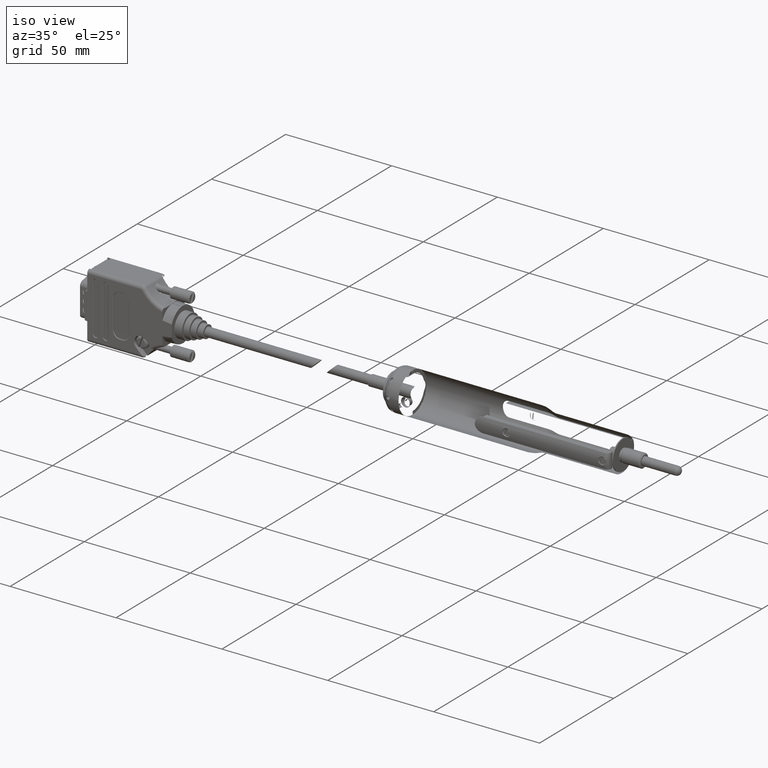
[diagram: clean part render]
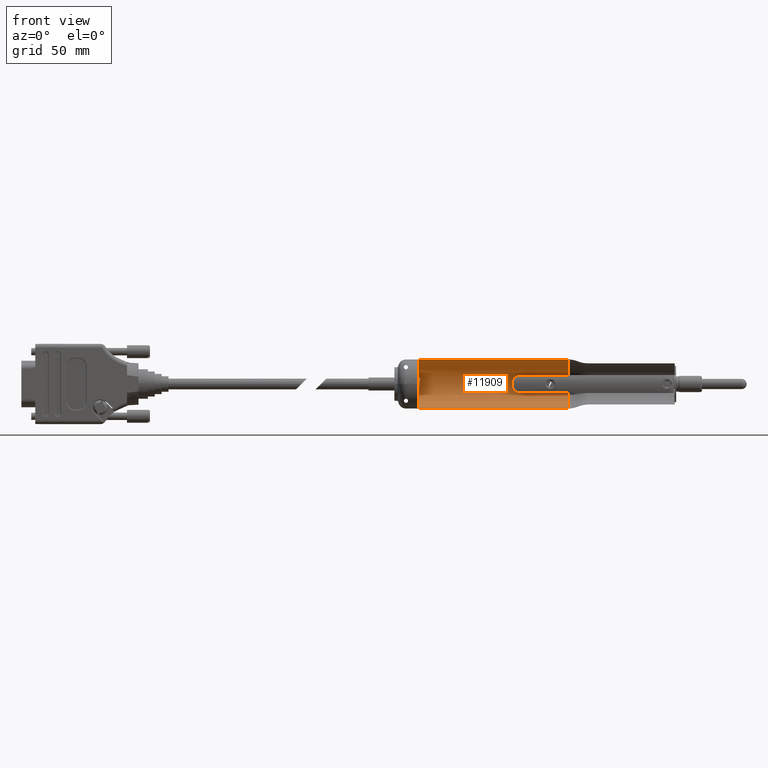
[diagram: tour spotlight — one face highlighted and labeled with its STEP entity id]
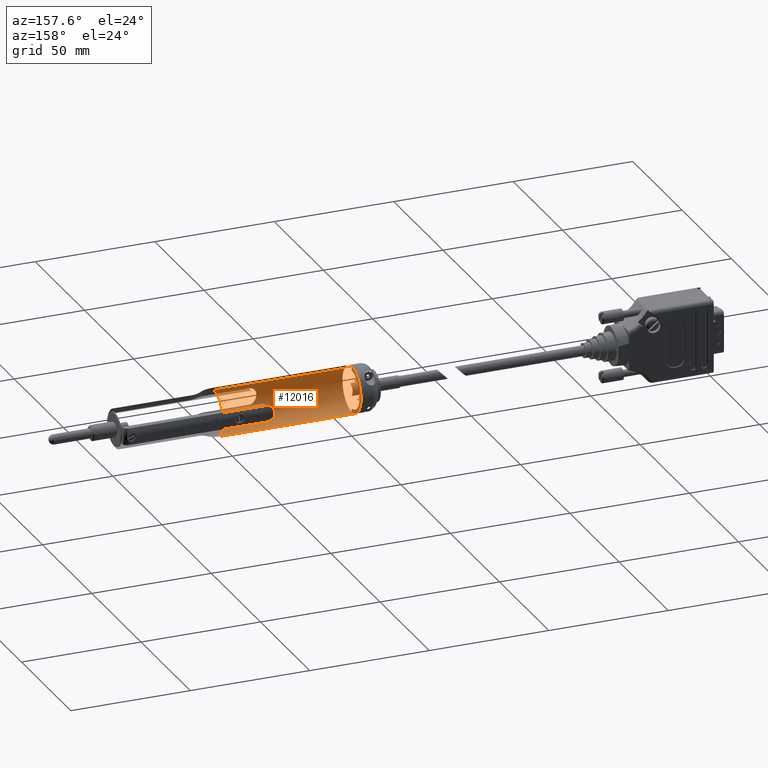
[diagram: tour spotlight — one face highlighted and labeled with its STEP entity id]
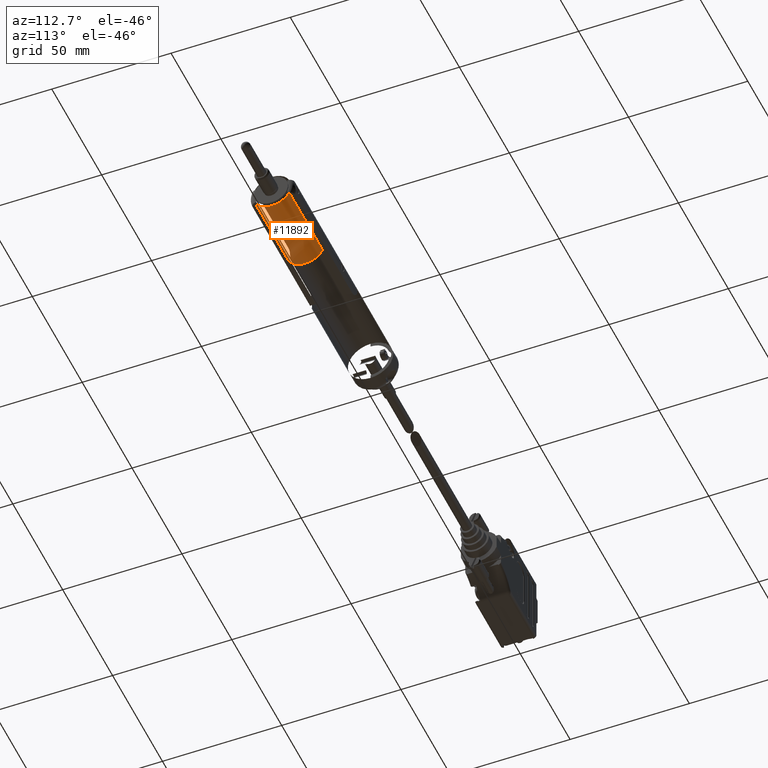
[diagram: tour spotlight — one face highlighted and labeled with its STEP entity id]
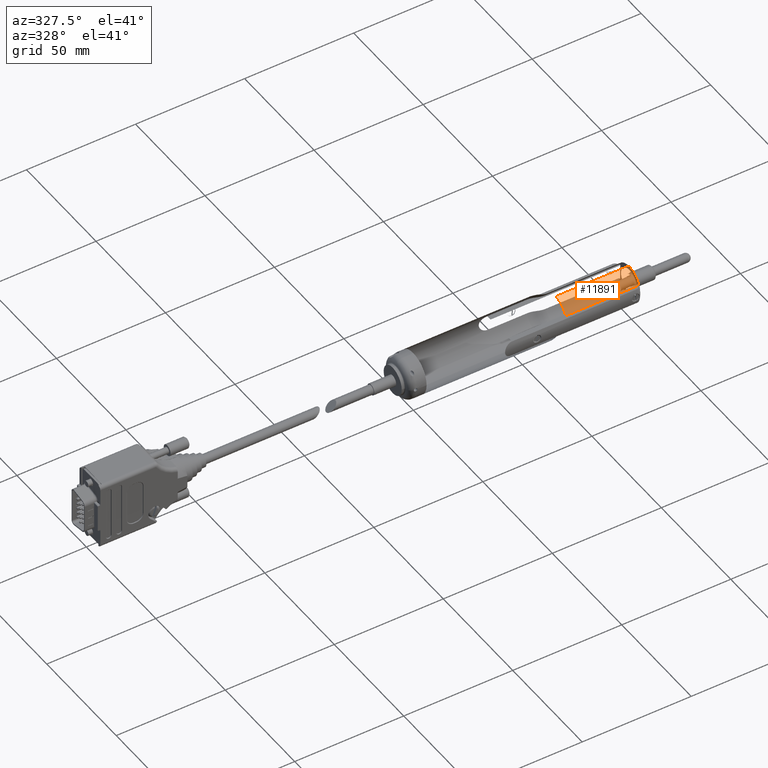
[diagram: tour spotlight — one face highlighted and labeled with its STEP entity id]
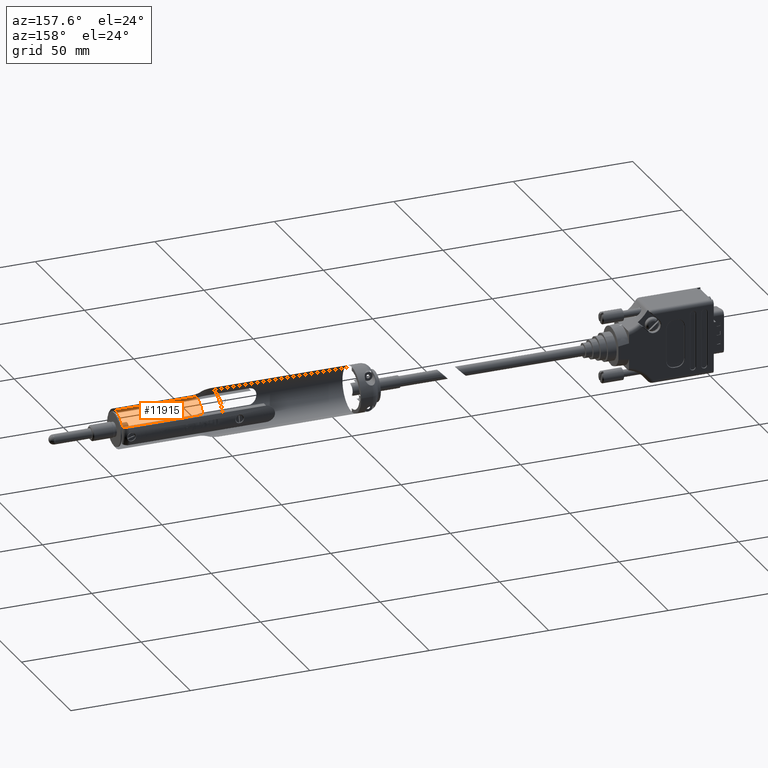
[diagram: tour spotlight — one face highlighted and labeled with its STEP entity id]
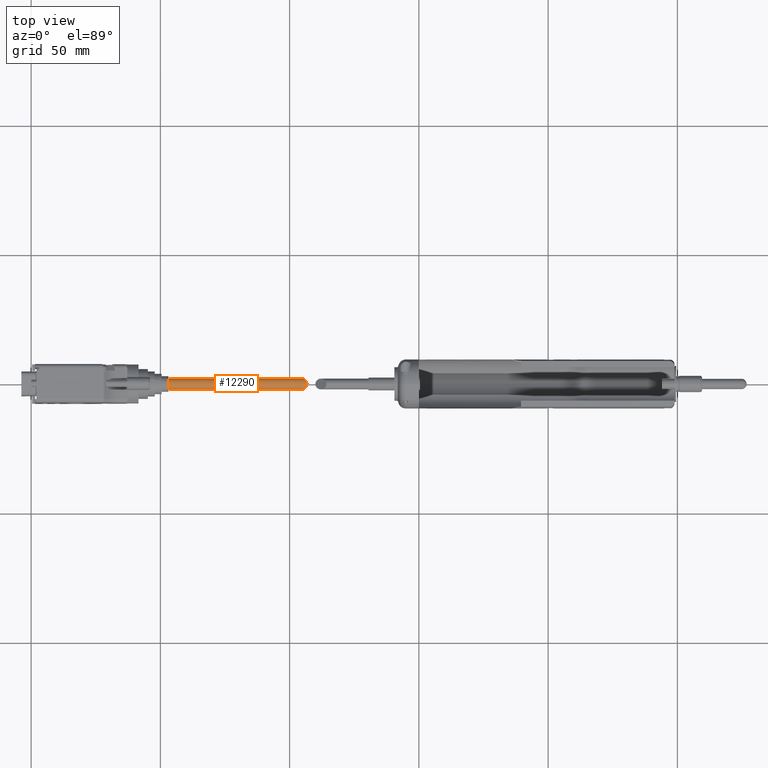
[diagram: tour spotlight — one face highlighted and labeled with its STEP entity id]
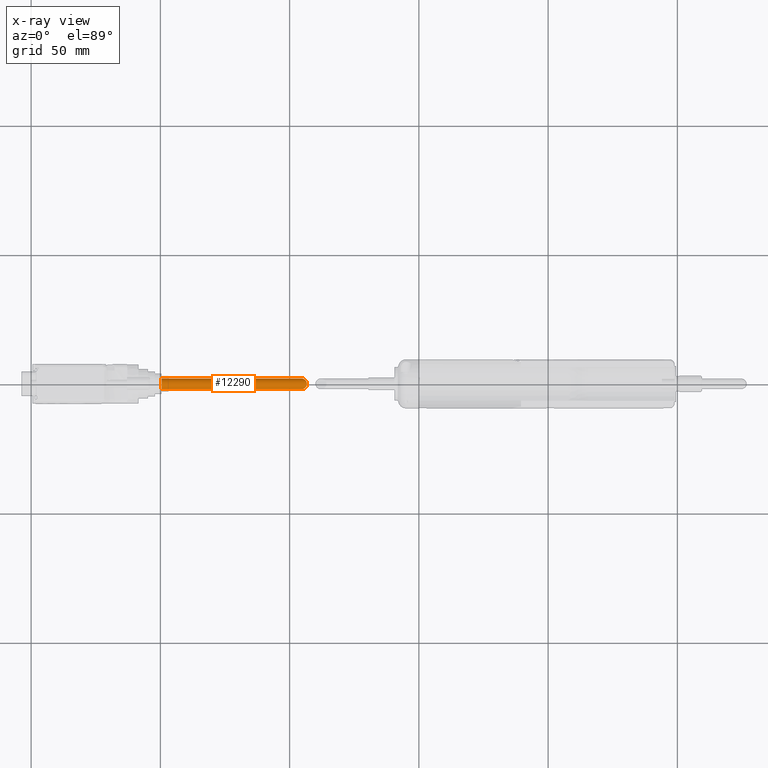
[diagram: x-ray of the same camera — body ghosted, this tour face saturated]
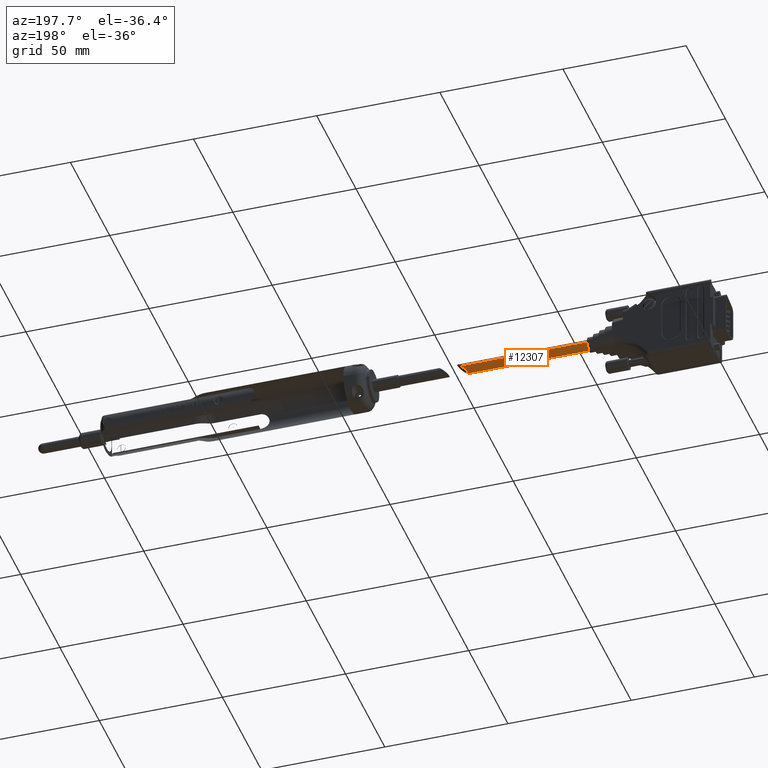
[diagram: tour spotlight — one face highlighted and labeled with its STEP entity id]
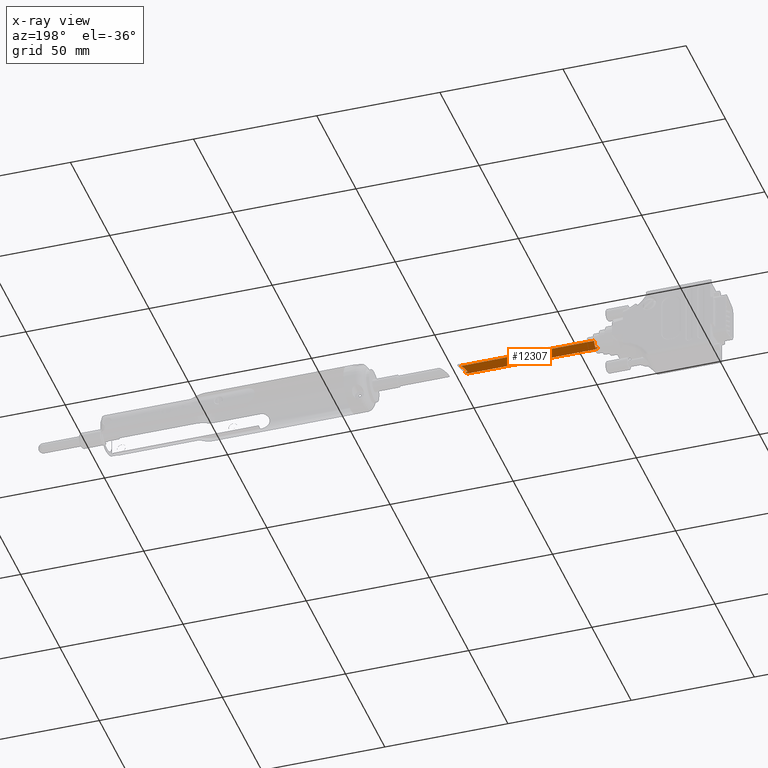
[diagram: x-ray of the same camera — body ghosted, this tour face saturated]
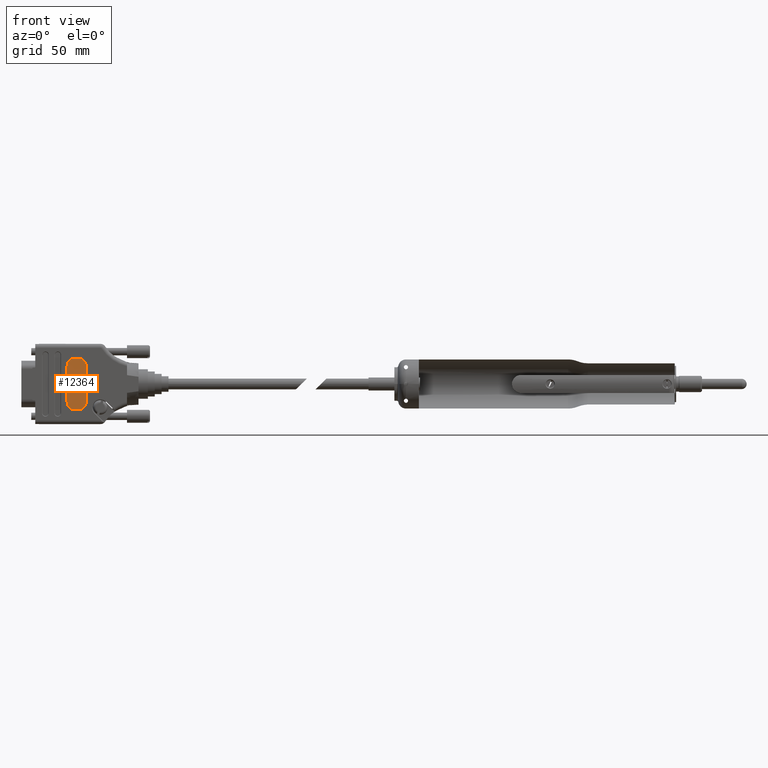
[diagram: tour spotlight — one face highlighted and labeled with its STEP entity id]
A machine part: a face-by-face anatomy tour. The part has 509 B-rep faces; the first image is the clean iso view, then the 8 largest visible faces are spotlighted one at a time (largest first), each with its STEP entity span.

Face 1 — front view, entity #11909. In plain terms, the highlighted cylindrical surface (edge-blend (fillet) strip) has radius 9.5 mm, axis along (-1, -0, -0).
Definition (entity closure, byte-faithful):
#606 = DIRECTION ( 'NONE',  ( -1.000000000000000000, -0.0000000000000000000, -0.0000000000000000000 ) ) ;
#607 = CARTESIAN_POINT ( 'NONE',  ( 39.50000000000000700, -8.831760866327846000, -3.500000000000004900 ) ) ;
#608 = CARTESIAN_POINT ( 'NONE',  ( 39.26656007919242300, -8.831760866327844200, -3.500000000000005800 ) ) ;
#610 = CARTESIAN_POINT ( 'NONE',  ( 38.36171143716039500, -8.902388929247415200, -3.317556151127997800 ) ) ;
#616 = CARTESIAN_POINT ( 'NONE',  ( 39.03388556260955500, -8.841157756019573100, -3.476542377471557800 ) ) ;
#617 = CARTESIAN_POINT ( 'NONE',  ( 38.57998048353193400, -8.876668502809113900, -3.384844702555385200 ) ) ;
#624 = CARTESIAN_POINT ( 'NONE',  ( 57.00000000000000000, 1.163414459189985300E-015, -9.500000000000000000 ) ) ;
#632 = CARTESIAN_POINT ( 'NONE',  ( 37.94133701682096000, -8.965838393057733700, -3.142045412314416400 ) ) ;
#633 = CARTESIAN_POINT ( 'NONE',  ( 37.73723297465831200, -9.004075941683012700, -3.032217914650758800 ) ) ;
#643 = CARTESIAN_POINT ( 'NONE',  ( 39.26659947455603100, -8.831760866327849500, 3.499999999999995100 ) ) ;
#644 = CARTESIAN_POINT ( 'NONE',  ( 57.00000000000000000, -8.831760866327847700, 3.499999999999993800 ) ) ;
#660 = CARTESIAN_POINT ( 'NONE',  ( 37.94183966687125300, -8.965725441267659700, 3.142378499855000800 ) ) ;
#661 = CARTESIAN_POINT ( 'NONE',  ( 38.36443005975729600, -8.902015960086851400, 3.318567035770721300 ) ) ;
#662 = CARTESIAN_POINT ( 'NONE',  ( 39.50000000000000700, -8.831760866327847700, 3.499999999999995600 ) ) ;
#663 = CARTESIAN_POINT ( 'NONE',  ( 38.58765361621878000, -8.875926904680207800, 3.386776704777990900 ) ) ;
#666 = CARTESIAN_POINT ( 'NONE',  ( 36.44576485746547700, -9.343510151007011500, 1.768933419481510300 ) ) ;
#668 = CARTESIAN_POINT ( 'NONE',  ( 37.74173729791150600, -9.003182309024461800, 3.034873275608760000 ) ) ;
#669 = CARTESIAN_POINT ( 'NONE',  ( 37.36300761588572800, -9.084742176294160000, 2.781224025280482100 ) ) ;
#677 = CARTESIAN_POINT ( 'NONE',  ( 36.00026732043996000, -9.499901513578098600, 0.2346117562643623400 ) ) ;
#678 = CARTESIAN_POINT ( 'NONE',  ( 35.99973730241771400, -9.500096783264311300, -0.2265668829991148400 ) ) ;
#679 = CARTESIAN_POINT ( 'NONE',  ( 36.70585704623180600, -9.258100845014430600, 2.155730676564530800 ) ) ;
#680 = CARTESIAN_POINT ( 'NONE',  ( 37.18549400782207900, -9.128704020309713800, 2.635178250359154100 ) ) ;
#684 = CARTESIAN_POINT ( 'NONE',  ( 36.18249897210765900, -9.433929217409168900, 1.138444714092899000 ) ) ;
#699 = CARTESIAN_POINT ( 'NONE',  ( 36.02309615337833300, -9.491420516350091300, 0.4630791985958676600 ) ) ;
#720 = DIRECTION ( 'NONE',  ( -1.000000000000000000, -0.0000000000000000000, -0.0000000000000000000 ) ) ;
#762 = CARTESIAN_POINT ( 'NONE',  ( 36.11405113440107300, -9.458480468869700200, 0.9157799857903083900 ) ) ;
#776 = CARTESIAN_POINT ( 'NONE',  ( 36.35706223579093400, -9.373959516094316800, -1.557341303702273200 ) ) ;
#777 = CARTESIAN_POINT ( 'NONE',  ( 36.02284450617747100, -9.491514489360273600, -0.4606615103951309800 ) ) ;
#778 = CARTESIAN_POINT ( 'NONE',  ( 36.11293944160878100, -9.458880282555931300, -0.9113946067265041900 ) ) ;
#779 = CARTESIAN_POINT ( 'NONE',  ( 36.17963512667415000, -9.434928834479881800, -1.130728452765019200 ) ) ;
#780 = CARTESIAN_POINT ( 'NONE',  ( 37.18530012600420800, -9.128742140095141600, -2.635097840506294800 ) ) ;
#781 = CARTESIAN_POINT ( 'NONE',  ( 36.71790122677337800, -9.258816775833008000, -2.135754407480795700 ) ) ;
#782 = CARTESIAN_POINT ( 'NONE',  ( 37.35975541900547400, -9.085520504871430700, -2.778677059516724100 ) ) ;
#783 = CARTESIAN_POINT ( 'NONE',  ( 36.46535009980660600, -9.337811013358607000, -1.758527923099040500 ) ) ;
#784 = CARTESIAN_POINT ( 'NONE',  ( 36.86417716363506300, -9.215403386633472100, -2.313874264305232100 ) ) ;
#799 = CARTESIAN_POINT ( 'NONE',  ( 39.03755228513845300, -8.841015800359594200, 3.476891497163072700 ) ) ;
#1797 = B_SPLINE_CURVE_WITH_KNOTS ( 'NONE', 3,
 ( #662, #643, #799, #663, #661, #660, #668, #669, #680, #679, #666, #684, #762, #699, #677, #678, #777, #778, #779, #776, #783, #781, #784, #780, #782, #633, #632, #610, #617, #616, #608, #607 ),
 .UNSPECIFIED., .F., .F.,
 ( 4, 2, 2, 2, 2, 2, 2, 2, 2, 2, 2, 2, 2, 2, 2, 4 ),
 ( 0.0000000000000000000, 0.0006897316603934217600, 0.001379463320786843500, 0.002069194981180265400, 0.002758926641573687100, 0.004138389962360530800, 0.004828121622753956400, 0.005517853283147381100, 0.006207584943540806600, 0.006897316603934232200, 0.007587048264327656900, 0.008276779924721082400, 0.008966511585114508900, 0.009656243245507933500, 0.01034597490590136000, 0.01103570656629478500 ),
 .UNSPECIFIED. ) ;
#2302 = AXIS2_PLACEMENT_3D ( 'NONE', #25582, #25583, #25584 ) ;
#2351 = AXIS2_PLACEMENT_3D ( 'NONE', #26113, #26114, #26115 ) ;
#2353 = AXIS2_PLACEMENT_3D ( 'NONE', #26125, #26126, #26127 ) ;
#3595 = CIRCLE ( 'NONE', #2302, 9.500000000000000000 ) ;
#3663 = LINE ( 'NONE', #25765, #3687 ) ;
#3687 = VECTOR ( 'NONE', #25780, 1000.000000000000000 ) ;
#3801 = CIRCLE ( 'NONE', #2351, 9.500000000000000000 ) ;
#3811 = CIRCLE ( 'NONE', #2353, 9.500000000000000000 ) ;
#3818 = LINE ( 'NONE', #26159, #3820 ) ;
#3820 = VECTOR ( 'NONE', #26160, 1000.000000000000000 ) ;
#5557 = ORIENTED_EDGE ( 'NONE', *, *, #9795, .F. ) ;
#5607 = ORIENTED_EDGE ( 'NONE', *, *, #19815, .T. ) ;
#5632 = ORIENTED_EDGE ( 'NONE', *, *, #19706, .T. ) ;
#5634 = ORIENTED_EDGE ( 'NONE', *, *, #19821, .F. ) ;
#5655 = ORIENTED_EDGE ( 'NONE', *, *, #19749, .T. ) ;
#5808 = ORIENTED_EDGE ( 'NONE', *, *, #19810, .T. ) ;
#5813 = ORIENTED_EDGE ( 'NONE', *, *, #9781, .F. ) ;
#5814 = ORIENTED_EDGE ( 'NONE', *, *, #9773, .F. ) ;
#9773 = EDGE_CURVE ( 'NONE', #26796, #26682, #21246, .T. ) ;
#9781 = EDGE_CURVE ( 'NONE', #26682, #26685, #1797, .T. ) ;
#9795 = EDGE_CURVE ( 'NONE', #26815, #26817, #21275, .T. ) ;
#11909 = ADVANCED_FACE ( 'NONE', ( #22841 ), #22878, .T. ) ;
#18867 = CARTESIAN_POINT ( 'NONE',  ( 39.50000000000000700, -8.831760866327847700, 3.499999999999995600 ) ) ;
#18870 = CARTESIAN_POINT ( 'NONE',  ( 39.50000000000000700, -8.831760866327846000, -3.500000000000004900 ) ) ;
#18981 = CARTESIAN_POINT ( 'NONE',  ( 57.66848479964105000, -8.831760866327847700, 3.499999999999993800 ) ) ;
#18982 = CARTESIAN_POINT ( 'NONE',  ( 57.66848479964105000, -8.831760866327844200, -3.500000000000007100 ) ) ;
#19000 = CARTESIAN_POINT ( 'NONE',  ( 57.66848479964105000, 1.163414459189985300E-015, -9.500000000000000000 ) ) ;
#19002 = CARTESIAN_POINT ( 'NONE',  ( 0.0000000000000000000, 1.163414459189985300E-015, -9.500000000000000000 ) ) ;
#19004 = CARTESIAN_POINT ( 'NONE',  ( 0.0000000000000000000, 0.0000000000000000000, 9.500000000000000000 ) ) ;
#19231 = CARTESIAN_POINT ( 'NONE',  ( 57.66848479964105000, 0.0000000000000000000, 9.499999999999998200 ) ) ;
#19706 = EDGE_CURVE ( 'NONE', #26796, #27046, #3595, .T. ) ;
#19749 = EDGE_CURVE ( 'NONE', #27046, #26819, #3663, .T. ) ;
#19810 = EDGE_CURVE ( 'NONE', #26819, #26817, #3801, .T. ) ;
#19815 = EDGE_CURVE ( 'NONE', #26815, #26797, #3811, .T. ) ;
#19821 = EDGE_CURVE ( 'NONE', #26685, #26797, #3818, .T. ) ;
#20953 = AXIS2_PLACEMENT_3D ( 'NONE', #28156, #28161, #28002 ) ;
#21246 = LINE ( 'NONE', #644, #21255 ) ;
#21255 = VECTOR ( 'NONE', #720, 1000.000000000000000 ) ;
#21274 = VECTOR ( 'NONE', #606, 1000.000000000000000 ) ;
#21275 = LINE ( 'NONE', #624, #21274 ) ;
#22841 = FACE_OUTER_BOUND ( 'NONE', #24068, .T. ) ;
#22878 = CYLINDRICAL_SURFACE ( 'NONE', #20953, 9.500000000000000000 ) ;
#24068 = EDGE_LOOP ( 'NONE', ( #5557, #5607, #5634, #5813, #5814, #5632, #5655, #5808 ) ) ;
#25582 = CARTESIAN_POINT ( 'NONE',  ( 57.66848479964105000, 0.0000000000000000000, 0.0000000000000000000 ) ) ;
#25583 = DIRECTION ( 'NONE',  ( -1.000000000000000000, -0.0000000000000000000, -0.0000000000000000000 ) ) ;
#25584 = DIRECTION ( 'NONE',  ( 0.0000000000000000000, 0.0000000000000000000, 1.000000000000000000 ) ) ;
#25765 = CARTESIAN_POINT ( 'NONE',  ( 57.00000000000000000, 0.0000000000000000000, 9.500000000000000000 ) ) ;
#25780 = DIRECTION ( 'NONE',  ( -1.000000000000000000, -0.0000000000000000000, -0.0000000000000000000 ) ) ;
#26113 = CARTESIAN_POINT ( 'NONE',  ( 0.0000000000000000000, 0.0000000000000000000, 0.0000000000000000000 ) ) ;
#26114 = DIRECTION ( 'NONE',  ( 1.000000000000000000, 0.0000000000000000000, 0.0000000000000000000 ) ) ;
#26115 = DIRECTION ( 'NONE',  ( 0.0000000000000000000, 0.0000000000000000000, -1.000000000000000000 ) ) ;
#26125 = CARTESIAN_POINT ( 'NONE',  ( 57.66848479964105000, 0.0000000000000000000, 0.0000000000000000000 ) ) ;
#26126 = DIRECTION ( 'NONE',  ( -1.000000000000000000, -0.0000000000000000000, -0.0000000000000000000 ) ) ;
#26127 = DIRECTION ( 'NONE',  ( 0.0000000000000000000, 0.0000000000000000000, 1.000000000000000000 ) ) ;
#26159 = CARTESIAN_POINT ( 'NONE',  ( 57.00000000000000000, -8.831760866327842400, -3.500000000000007100 ) ) ;
#26160 = DIRECTION ( 'NONE',  ( 1.000000000000000000, 0.0000000000000000000, 0.0000000000000000000 ) ) ;
#26682 = VERTEX_POINT ( 'NONE', #18867 ) ;
#26685 = VERTEX_POINT ( 'NONE', #18870 ) ;
#26796 = VERTEX_POINT ( 'NONE', #18981 ) ;
#26797 = VERTEX_POINT ( 'NONE', #18982 ) ;
#26815 = VERTEX_POINT ( 'NONE', #19000 ) ;
#26817 = VERTEX_POINT ( 'NONE', #19002 ) ;
#26819 = VERTEX_POINT ( 'NONE', #19004 ) ;
#27046 = VERTEX_POINT ( 'NONE', #19231 ) ;
#28002 = DIRECTION ( 'NONE',  ( 0.0000000000000000000, 0.0000000000000000000, 1.000000000000000000 ) ) ;
#28156 = CARTESIAN_POINT ( 'NONE',  ( 57.00000000000000000, 0.0000000000000000000, 0.0000000000000000000 ) ) ;
#28161 = DIRECTION ( 'NONE',  ( -1.000000000000000000, -0.0000000000000000000, -0.0000000000000000000 ) ) ;

Face 2 — auxiliary view, entity #12016. In plain terms, the highlighted cylindrical surface (edge-blend (fillet) strip) has radius 9.5 mm, axis along (-1, -0, -0).
Definition (entity closure, byte-faithful):
#567 = CARTESIAN_POINT ( 'NONE',  ( 0.0000000000000000000, 0.0000000000000000000, 0.0000000000000000000 ) ) ;
#603 = DIRECTION ( 'NONE',  ( 0.0000000000000000000, 0.0000000000000000000, 1.000000000000000000 ) ) ;
#606 = DIRECTION ( 'NONE',  ( -1.000000000000000000, -0.0000000000000000000, -0.0000000000000000000 ) ) ;
#624 = CARTESIAN_POINT ( 'NONE',  ( 57.00000000000000000, 1.163414459189985300E-015, -9.500000000000000000 ) ) ;
#695 = DIRECTION ( 'NONE',  ( 0.0000000000000000000, 0.0000000000000000000, -1.000000000000000000 ) ) ;
#698 = DIRECTION ( 'NONE',  ( 1.000000000000000000, 0.0000000000000000000, 0.0000000000000000000 ) ) ;
#747 = CARTESIAN_POINT ( 'NONE',  ( 57.66848479964105000, 0.0000000000000000000, 0.0000000000000000000 ) ) ;
#748 = DIRECTION ( 'NONE',  ( -1.000000000000000000, -0.0000000000000000000, -0.0000000000000000000 ) ) ;
#2338 = AXIS2_PLACEMENT_3D ( 'NONE', #25892, #25893, #25894 ) ;
#3492 = VECTOR ( 'NONE', #23947, 1000.000000000000000 ) ;
#3497 = LINE ( 'NONE', #23946, #3492 ) ;
#3663 = LINE ( 'NONE', #25765, #3687 ) ;
#3687 = VECTOR ( 'NONE', #25780, 1000.000000000000000 ) ;
#3717 = LINE ( 'NONE', #25826, #3724 ) ;
#3724 = VECTOR ( 'NONE', #25827, 1000.000000000000000 ) ;
#3738 = CIRCLE ( 'NONE', #2338, 9.500000000000000000 ) ;
#5544 = ORIENTED_EDGE ( 'NONE', *, *, #19773, .T. ) ;
#5578 = ORIENTED_EDGE ( 'NONE', *, *, #19749, .F. ) ;
#5641 = ORIENTED_EDGE ( 'NONE', *, *, #19763, .T. ) ;
#5652 = ORIENTED_EDGE ( 'NONE', *, *, #19669, .T. ) ;
#5683 = ORIENTED_EDGE ( 'NONE', *, *, #9796, .T. ) ;
#5687 = ORIENTED_EDGE ( 'NONE', *, *, #9795, .T. ) ;
#5707 = ORIENTED_EDGE ( 'NONE', *, *, #19662, .T. ) ;
#5769 = ORIENTED_EDGE ( 'NONE', *, *, #9793, .T. ) ;
#9793 = EDGE_CURVE ( 'NONE', #26816, #26815, #21273, .T. ) ;
#9795 = EDGE_CURVE ( 'NONE', #26815, #26817, #21275, .T. ) ;
#9796 = EDGE_CURVE ( 'NONE', #26817, #26819, #21277, .T. ) ;
#9934 = AXIS2_PLACEMENT_3D ( 'NONE', #747, #748, #603 ) ;
#9935 = AXIS2_PLACEMENT_3D ( 'NONE', #567, #698, #695 ) ;
#12016 = ADVANCED_FACE ( 'NONE', ( #17406 ), #17411, .T. ) ;
#12482 = AXIS2_PLACEMENT_3D ( 'NONE', #22109, #22127, #22037 ) ;
#17406 = FACE_OUTER_BOUND ( 'NONE', #25036, .T. ) ;
#17411 = CYLINDRICAL_SURFACE ( 'NONE', #12482, 9.500000000000000000 ) ;
#18863 = CARTESIAN_POINT ( 'NONE',  ( 39.50000000000000700, 8.831760866327842400, -3.500000000000004900 ) ) ;
#19000 = CARTESIAN_POINT ( 'NONE',  ( 57.66848479964105000, 1.163414459189985300E-015, -9.500000000000000000 ) ) ;
#19001 = CARTESIAN_POINT ( 'NONE',  ( 57.66848479964105000, 8.831760866327844200, -3.500000000000007100 ) ) ;
#19002 = CARTESIAN_POINT ( 'NONE',  ( 0.0000000000000000000, 1.163414459189985300E-015, -9.500000000000000000 ) ) ;
#19004 = CARTESIAN_POINT ( 'NONE',  ( 0.0000000000000000000, 0.0000000000000000000, 9.500000000000000000 ) ) ;
#19190 = CARTESIAN_POINT ( 'NONE',  ( 39.50000000000000700, 8.831760866327849500, 3.499999999999995600 ) ) ;
#19191 = CARTESIAN_POINT ( 'NONE',  ( 57.66848479964105000, 8.831760866327847700, 3.499999999999993800 ) ) ;
#19231 = CARTESIAN_POINT ( 'NONE',  ( 57.66848479964105000, 0.0000000000000000000, 9.499999999999998200 ) ) ;
#19662 = EDGE_CURVE ( 'NONE', #26678, #26816, #3497, .T. ) ;
#19669 = EDGE_CURVE ( 'NONE', #27005, #26678, #20263, .T. ) ;
#19749 = EDGE_CURVE ( 'NONE', #27046, #26819, #3663, .T. ) ;
#19763 = EDGE_CURVE ( 'NONE', #27006, #27005, #3717, .T. ) ;
#19773 = EDGE_CURVE ( 'NONE', #27046, #27006, #3738, .T. ) ;
#20263 = B_SPLINE_CURVE_WITH_KNOTS ( 'NONE', 3,
 ( #25424, #25402, #25419, #25425, #25426, #25427, #25428, #25429, #25430, #25431, #25432, #25433, #25434, #25435, #25436, #25437, #25438, #25439, #25440, #25441, #25442, #25443, #25444, #25445, #25446, #25447, #25448, #25449, #25450, #25451, #25452, #25453 ),
 .UNSPECIFIED., .F., .F.,
 ( 4, 2, 2, 2, 2, 2, 2, 2, 2, 2, 2, 2, 2, 2, 2, 4 ),
 ( 0.0000000000000000000, 0.0006897316603934217600, 0.001379463320786843500, 0.002069194981180265400, 0.002758926641573687100, 0.004138389962360530800, 0.004828121622753956400, 0.005517853283147381100, 0.006207584943540806600, 0.006897316603934232200, 0.007587048264327656900, 0.008276779924721082400, 0.008966511585114508900, 0.009656243245507933500, 0.01034597490590136000, 0.01103570656629478500 ),
 .UNSPECIFIED. ) ;
#21273 = CIRCLE ( 'NONE', #9934, 9.500000000000000000 ) ;
#21274 = VECTOR ( 'NONE', #606, 1000.000000000000000 ) ;
#21275 = LINE ( 'NONE', #624, #21274 ) ;
#21277 = CIRCLE ( 'NONE', #9935, 9.500000000000000000 ) ;
#22037 = DIRECTION ( 'NONE',  ( 0.0000000000000000000, 0.0000000000000000000, 1.000000000000000000 ) ) ;
#22109 = CARTESIAN_POINT ( 'NONE',  ( 57.00000000000000000, 0.0000000000000000000, 0.0000000000000000000 ) ) ;
#22127 = DIRECTION ( 'NONE',  ( -1.000000000000000000, -0.0000000000000000000, -0.0000000000000000000 ) ) ;
#23946 = CARTESIAN_POINT ( 'NONE',  ( 57.00000000000000000, 8.831760866327842400, -3.500000000000007100 ) ) ;
#23947 = DIRECTION ( 'NONE',  ( 1.000000000000000000, 0.0000000000000000000, 0.0000000000000000000 ) ) ;
#25036 = EDGE_LOOP ( 'NONE', ( #5769, #5687, #5683, #5578, #5544, #5641, #5652, #5707 ) ) ;
#25402 = CARTESIAN_POINT ( 'NONE',  ( 39.26659947455603100, 8.831760866327849500, 3.499999999999995100 ) ) ;
#25419 = CARTESIAN_POINT ( 'NONE',  ( 39.03755228513845300, 8.841015800359594200, 3.476891497163072700 ) ) ;
#25424 = CARTESIAN_POINT ( 'NONE',  ( 39.50000000000000700, 8.831760866327849500, 3.499999999999995600 ) ) ;
#25425 = CARTESIAN_POINT ( 'NONE',  ( 38.58765361621878000, 8.875926904680207800, 3.386776704777990900 ) ) ;
#25426 = CARTESIAN_POINT ( 'NONE',  ( 38.36443005975729600, 8.902015960086851400, 3.318567035770721300 ) ) ;
#25427 = CARTESIAN_POINT ( 'NONE',  ( 37.94183966687125300, 8.965725441267659700, 3.142378499855000800 ) ) ;
#25428 = CARTESIAN_POINT ( 'NONE',  ( 37.74173729791150600, 9.003182309024461800, 3.034873275608760000 ) ) ;
#25429 = CARTESIAN_POINT ( 'NONE',  ( 37.36300761588572800, 9.084742176294160000, 2.781224025280482100 ) ) ;
#25430 = CARTESIAN_POINT ( 'NONE',  ( 37.18549400782207900, 9.128704020309713800, 2.635178250359154100 ) ) ;
#25431 = CARTESIAN_POINT ( 'NONE',  ( 36.70585704623180600, 9.258100845014430600, 2.155730676564530800 ) ) ;
#25432 = CARTESIAN_POINT ( 'NONE',  ( 36.44576485746547700, 9.343510151007011500, 1.768933419481510300 ) ) ;
#25433 = CARTESIAN_POINT ( 'NONE',  ( 36.18249897210765900, 9.433929217409168900, 1.138444714092899000 ) ) ;
#25434 = CARTESIAN_POINT ( 'NONE',  ( 36.11405113440107300, 9.458480468869700200, 0.9157799857903083900 ) ) ;
#25435 = CARTESIAN_POINT ( 'NONE',  ( 36.02309615337833300, 9.491420516350091300, 0.4630791985958676600 ) ) ;
#25436 = CARTESIAN_POINT ( 'NONE',  ( 36.00026732043996000, 9.499901513578098600, 0.2346117562643623400 ) ) ;
#25437 = CARTESIAN_POINT ( 'NONE',  ( 35.99973730241771400, 9.500096783264311300, -0.2265668829991148400 ) ) ;
#25438 = CARTESIAN_POINT ( 'NONE',  ( 36.02284450617747100, 9.491514489360273600, -0.4606615103951309800 ) ) ;
#25439 = CARTESIAN_POINT ( 'NONE',  ( 36.11293944160878100, 9.458880282555931300, -0.9113946067265041900 ) ) ;
#25440 = CARTESIAN_POINT ( 'NONE',  ( 36.17963512667415000, 9.434928834479881800, -1.130728452765019200 ) ) ;
#25441 = CARTESIAN_POINT ( 'NONE',  ( 36.35706223579093400, 9.373959516094316800, -1.557341303702273200 ) ) ;
#25442 = CARTESIAN_POINT ( 'NONE',  ( 36.46535009980660600, 9.337811013358607000, -1.758527923099040500 ) ) ;
#25443 = CARTESIAN_POINT ( 'NONE',  ( 36.71790122677337800, 9.258816775833008000, -2.135754407480795700 ) ) ;
#25444 = CARTESIAN_POINT ( 'NONE',  ( 36.86417716363506300, 9.215403386633472100, -2.313874264305232100 ) ) ;
#25445 = CARTESIAN_POINT ( 'NONE',  ( 37.18530012600420800, 9.128742140095141600, -2.635097840506294800 ) ) ;
#25446 = CARTESIAN_POINT ( 'NONE',  ( 37.35975541900547400, 9.085520504871430700, -2.778677059516724100 ) ) ;
#25447 = CARTESIAN_POINT ( 'NONE',  ( 37.73723297465831200, 9.004075941683012700, -3.032217914650758800 ) ) ;
#25448 = CARTESIAN_POINT ( 'NONE',  ( 37.94133701682096000, 8.965838393057733700, -3.142045412314416400 ) ) ;
#25449 = CARTESIAN_POINT ( 'NONE',  ( 38.36171143716039500, 8.902388929247415200, -3.317556151127997800 ) ) ;
#25450 = CARTESIAN_POINT ( 'NONE',  ( 38.57998048353193400, 8.876668502809113900, -3.384844702555385200 ) ) ;
#25451 = CARTESIAN_POINT ( 'NONE',  ( 39.03388556260955500, 8.841157756019573100, -3.476542377471557800 ) ) ;
#25452 = CARTESIAN_POINT ( 'NONE',  ( 39.26656007919242300, 8.831760866327844200, -3.500000000000005800 ) ) ;
#25453 = CARTESIAN_POINT ( 'NONE',  ( 39.50000000000000700, 8.831760866327842400, -3.500000000000004900 ) ) ;
#25765 = CARTESIAN_POINT ( 'NONE',  ( 57.00000000000000000, 0.0000000000000000000, 9.500000000000000000 ) ) ;
#25780 = DIRECTION ( 'NONE',  ( -1.000000000000000000, -0.0000000000000000000, -0.0000000000000000000 ) ) ;
#25826 = CARTESIAN_POINT ( 'NONE',  ( 57.00000000000000000, 8.831760866327847700, 3.499999999999993800 ) ) ;
#25827 = DIRECTION ( 'NONE',  ( -1.000000000000000000, -0.0000000000000000000, -0.0000000000000000000 ) ) ;
#25892 = CARTESIAN_POINT ( 'NONE',  ( 57.66848479964105000, 0.0000000000000000000, 0.0000000000000000000 ) ) ;
#25893 = DIRECTION ( 'NONE',  ( -1.000000000000000000, -0.0000000000000000000, -0.0000000000000000000 ) ) ;
#25894 = DIRECTION ( 'NONE',  ( 0.0000000000000000000, 0.0000000000000000000, 1.000000000000000000 ) ) ;
#26678 = VERTEX_POINT ( 'NONE', #18863 ) ;
#26815 = VERTEX_POINT ( 'NONE', #19000 ) ;
#26816 = VERTEX_POINT ( 'NONE', #19001 ) ;
#26817 = VERTEX_POINT ( 'NONE', #19002 ) ;
#26819 = VERTEX_POINT ( 'NONE', #19004 ) ;
#27005 = VERTEX_POINT ( 'NONE', #19190 ) ;
#27006 = VERTEX_POINT ( 'NONE', #19191 ) ;
#27046 = VERTEX_POINT ( 'NONE', #19231 ) ;

Face 3 — auxiliary view, entity #11892. In plain terms, the highlighted cylindrical surface (edge-blend (fillet) strip) has radius 8 mm, axis along (-1, -0, -0).
Definition (entity closure, byte-faithful):
#463 = FACE_OUTER_BOUND ( 'NONE', #24312, .T. ) ;
#471 = CYLINDRICAL_SURFACE ( 'NONE', #20868, 8.000000000000000000 ) ;
#559 = DIRECTION ( 'NONE',  ( 1.000000000000000000, 0.0000000000000000000, 0.0000000000000000000 ) ) ;
#611 = CARTESIAN_POINT ( 'NONE',  ( 99.00000000000000000, -7.193747284969074200, -3.500000000000012000 ) ) ;
#2350 = AXIS2_PLACEMENT_3D ( 'NONE', #26078, #26079, #26080 ) ;
#2355 = AXIS2_PLACEMENT_3D ( 'NONE', #26161, #26162, #26163 ) ;
#3776 = LINE ( 'NONE', #26046, #3783 ) ;
#3783 = VECTOR ( 'NONE', #26047, 1000.000000000000000 ) ;
#3800 = CIRCLE ( 'NONE', #2350, 8.000000000000000000 ) ;
#3816 = CIRCLE ( 'NONE', #2355, 8.000000000000000000 ) ;
#5566 = ORIENTED_EDGE ( 'NONE', *, *, #19805, .T. ) ;
#5599 = ORIENTED_EDGE ( 'NONE', *, *, #9769, .F. ) ;
#5619 = ORIENTED_EDGE ( 'NONE', *, *, #19819, .T. ) ;
#5779 = ORIENTED_EDGE ( 'NONE', *, *, #19795, .T. ) ;
#9769 = EDGE_CURVE ( 'NONE', #26684, #27021, #21253, .T. ) ;
#11892 = ADVANCED_FACE ( 'NONE', ( #463 ), #471, .T. ) ;
#18869 = CARTESIAN_POINT ( 'NONE',  ( 65.26782687642638300, -7.193747284969076900, -3.500000000000008000 ) ) ;
#18871 = CARTESIAN_POINT ( 'NONE',  ( 98.79999999999999700, 7.193747284969074200, -3.500000000000012000 ) ) ;
#19204 = CARTESIAN_POINT ( 'NONE',  ( 65.26782687642638300, 7.193747284969073300, -3.500000000000008000 ) ) ;
#19206 = CARTESIAN_POINT ( 'NONE',  ( 98.79999999999999700, -7.193747284969074200, -3.500000000000012000 ) ) ;
#19795 = EDGE_CURVE ( 'NONE', #27019, #26686, #3776, .T. ) ;
#19805 = EDGE_CURVE ( 'NONE', #26686, #27021, #3800, .T. ) ;
#19819 = EDGE_CURVE ( 'NONE', #26684, #27019, #3816, .T. ) ;
#20868 = AXIS2_PLACEMENT_3D ( 'NONE', #27914, #27888, #28097 ) ;
#21250 = VECTOR ( 'NONE', #559, 1000.000000000000000 ) ;
#21253 = LINE ( 'NONE', #611, #21250 ) ;
#24312 = EDGE_LOOP ( 'NONE', ( #5779, #5566, #5599, #5619 ) ) ;
#26046 = CARTESIAN_POINT ( 'NONE',  ( 99.00000000000000000, 7.193747284969074200, -3.500000000000012000 ) ) ;
#26047 = DIRECTION ( 'NONE',  ( 1.000000000000000000, 0.0000000000000000000, 0.0000000000000000000 ) ) ;
#26078 = CARTESIAN_POINT ( 'NONE',  ( 98.79999999999999700, 0.0000000000000000000, 0.0000000000000000000 ) ) ;
#26079 = DIRECTION ( 'NONE',  ( -1.000000000000000000, 0.0000000000000000000, 0.0000000000000000000 ) ) ;
#26080 = DIRECTION ( 'NONE',  ( 0.0000000000000000000, 0.0000000000000000000, -1.000000000000000000 ) ) ;
#26161 = CARTESIAN_POINT ( 'NONE',  ( 65.26782687642638300, 0.0000000000000000000, 0.0000000000000000000 ) ) ;
#26162 = DIRECTION ( 'NONE',  ( 1.000000000000000000, 0.0000000000000000000, 0.0000000000000000000 ) ) ;
#26163 = DIRECTION ( 'NONE',  ( 0.0000000000000000000, 0.0000000000000000000, 1.000000000000000000 ) ) ;
#26684 = VERTEX_POINT ( 'NONE', #18869 ) ;
#26686 = VERTEX_POINT ( 'NONE', #18871 ) ;
#27019 = VERTEX_POINT ( 'NONE', #19204 ) ;
#27021 = VERTEX_POINT ( 'NONE', #19206 ) ;
#27888 = DIRECTION ( 'NONE',  ( -1.000000000000000000, -0.0000000000000000000, -0.0000000000000000000 ) ) ;
#27914 = CARTESIAN_POINT ( 'NONE',  ( 99.00000000000000000, 0.0000000000000000000, 0.0000000000000000000 ) ) ;
#28097 = DIRECTION ( 'NONE',  ( 0.0000000000000000000, 0.0000000000000000000, 1.000000000000000000 ) ) ;

Face 4 — auxiliary view, entity #11891. In plain terms, the highlighted cylindrical surface (edge-blend (fillet) strip) has radius 8 mm, axis along (-1, -0, -0).
Definition (entity closure, byte-faithful):
#461 = FACE_OUTER_BOUND ( 'NONE', #24372, .T. ) ;
#466 = CYLINDRICAL_SURFACE ( 'NONE', #20863, 8.000000000000000000 ) ;
#2300 = AXIS2_PLACEMENT_3D ( 'NONE', #25574, #25575, #25576 ) ;
#2311 = AXIS2_PLACEMENT_3D ( 'NONE', #25695, #25696, #25697 ) ;
#3577 = CIRCLE ( 'NONE', #2300, 8.000000000000000000 ) ;
#3583 = LINE ( 'NONE', #25571, #3588 ) ;
#3588 = VECTOR ( 'NONE', #25573, 1000.000000000000000 ) ;
#3628 = CIRCLE ( 'NONE', #2311, 8.000000000000000000 ) ;
#3689 = LINE ( 'NONE', #25779, #3693 ) ;
#3693 = VECTOR ( 'NONE', #25778, 1000.000000000000000 ) ;
#5538 = ORIENTED_EDGE ( 'NONE', *, *, #19751, .F. ) ;
#5681 = ORIENTED_EDGE ( 'NONE', *, *, #19703, .T. ) ;
#5732 = ORIENTED_EDGE ( 'NONE', *, *, #19702, .T. ) ;
#5771 = ORIENTED_EDGE ( 'NONE', *, *, #19726, .T. ) ;
#11891 = ADVANCED_FACE ( 'NONE', ( #461 ), #466, .T. ) ;
#18864 = CARTESIAN_POINT ( 'NONE',  ( 98.79999999999999700, -7.193747284969084900, 3.499999999999988000 ) ) ;
#18865 = CARTESIAN_POINT ( 'NONE',  ( 65.26782687642638300, 0.0000000000000000000, 8.000000000000000000 ) ) ;
#19196 = CARTESIAN_POINT ( 'NONE',  ( 98.79999999999999700, 0.0000000000000000000, 8.000000000000000000 ) ) ;
#19199 = CARTESIAN_POINT ( 'NONE',  ( 65.26782687642638300, -7.193747284969084900, 3.499999999999992500 ) ) ;
#19702 = EDGE_CURVE ( 'NONE', #27011, #26680, #3583, .T. ) ;
#19703 = EDGE_CURVE ( 'NONE', #26679, #27011, #3577, .T. ) ;
#19726 = EDGE_CURVE ( 'NONE', #26680, #27014, #3628, .T. ) ;
#19751 = EDGE_CURVE ( 'NONE', #26679, #27014, #3689, .T. ) ;
#20863 = AXIS2_PLACEMENT_3D ( 'NONE', #27997, #27897, #27913 ) ;
#24372 = EDGE_LOOP ( 'NONE', ( #5681, #5732, #5771, #5538 ) ) ;
#25571 = CARTESIAN_POINT ( 'NONE',  ( 99.00000000000000000, 0.0000000000000000000, 8.000000000000000000 ) ) ;
#25573 = DIRECTION ( 'NONE',  ( -1.000000000000000000, -0.0000000000000000000, -0.0000000000000000000 ) ) ;
#25574 = CARTESIAN_POINT ( 'NONE',  ( 98.79999999999999700, 0.0000000000000000000, 0.0000000000000000000 ) ) ;
#25575 = DIRECTION ( 'NONE',  ( -1.000000000000000000, 0.0000000000000000000, 0.0000000000000000000 ) ) ;
#25576 = DIRECTION ( 'NONE',  ( 0.0000000000000000000, 0.0000000000000000000, -1.000000000000000000 ) ) ;
#25695 = CARTESIAN_POINT ( 'NONE',  ( 65.26782687642638300, 0.0000000000000000000, 0.0000000000000000000 ) ) ;
#25696 = DIRECTION ( 'NONE',  ( 1.000000000000000000, 0.0000000000000000000, 0.0000000000000000000 ) ) ;
#25697 = DIRECTION ( 'NONE',  ( 0.0000000000000000000, 0.0000000000000000000, 1.000000000000000000 ) ) ;
#25778 = DIRECTION ( 'NONE',  ( -1.000000000000000000, -0.0000000000000000000, -0.0000000000000000000 ) ) ;
#25779 = CARTESIAN_POINT ( 'NONE',  ( 99.00000000000000000, -7.193747284969084900, 3.499999999999988000 ) ) ;
#26679 = VERTEX_POINT ( 'NONE', #18864 ) ;
#26680 = VERTEX_POINT ( 'NONE', #18865 ) ;
#27011 = VERTEX_POINT ( 'NONE', #19196 ) ;
#27014 = VERTEX_POINT ( 'NONE', #19199 ) ;
#27897 = DIRECTION ( 'NONE',  ( -1.000000000000000000, -0.0000000000000000000, -0.0000000000000000000 ) ) ;
#27913 = DIRECTION ( 'NONE',  ( 0.0000000000000000000, 0.0000000000000000000, 1.000000000000000000 ) ) ;
#27997 = CARTESIAN_POINT ( 'NONE',  ( 99.00000000000000000, 0.0000000000000000000, 0.0000000000000000000 ) ) ;

Face 5 — auxiliary view, entity #11915. In plain terms, the highlighted cylindrical surface (edge-blend (fillet) strip) has radius 8 mm, axis along (-1, -0, -0).
Definition (entity closure, byte-faithful):
#563 = DIRECTION ( 'NONE',  ( 0.0000000000000000000, 0.0000000000000000000, -1.000000000000000000 ) ) ;
#590 = CARTESIAN_POINT ( 'NONE',  ( 98.79999999999999700, 0.0000000000000000000, 0.0000000000000000000 ) ) ;
#591 = DIRECTION ( 'NONE',  ( -1.000000000000000000, 0.0000000000000000000, 0.0000000000000000000 ) ) ;
#2337 = AXIS2_PLACEMENT_3D ( 'NONE', #25887, #25888, #25889 ) ;
#3583 = LINE ( 'NONE', #25571, #3588 ) ;
#3588 = VECTOR ( 'NONE', #25573, 1000.000000000000000 ) ;
#3736 = CIRCLE ( 'NONE', #2337, 8.000000000000000000 ) ;
#3772 = LINE ( 'NONE', #26044, #3778 ) ;
#3778 = VECTOR ( 'NONE', #26045, 1000.000000000000000 ) ;
#5616 = ORIENTED_EDGE ( 'NONE', *, *, #9782, .T. ) ;
#5669 = ORIENTED_EDGE ( 'NONE', *, *, #19772, .T. ) ;
#5780 = ORIENTED_EDGE ( 'NONE', *, *, #19702, .F. ) ;
#5803 = ORIENTED_EDGE ( 'NONE', *, *, #19794, .T. ) ;
#9782 = EDGE_CURVE ( 'NONE', #27011, #23969, #21263, .T. ) ;
#9927 = AXIS2_PLACEMENT_3D ( 'NONE', #590, #591, #563 ) ;
#11915 = ADVANCED_FACE ( 'NONE', ( #23014 ), #23054, .T. ) ;
#18865 = CARTESIAN_POINT ( 'NONE',  ( 65.26782687642638300, 0.0000000000000000000, 8.000000000000000000 ) ) ;
#19018 = CARTESIAN_POINT ( 'NONE',  ( 65.26782687642638300, 7.193747284969081300, 3.499999999999992500 ) ) ;
#19196 = CARTESIAN_POINT ( 'NONE',  ( 98.79999999999999700, 0.0000000000000000000, 8.000000000000000000 ) ) ;
#19702 = EDGE_CURVE ( 'NONE', #27011, #26680, #3583, .T. ) ;
#19772 = EDGE_CURVE ( 'NONE', #26833, #26680, #3736, .T. ) ;
#19794 = EDGE_CURVE ( 'NONE', #23969, #26833, #3772, .T. ) ;
#20983 = AXIS2_PLACEMENT_3D ( 'NONE', #27814, #27821, #28113 ) ;
#21263 = CIRCLE ( 'NONE', #9927, 8.000000000000000000 ) ;
#23014 = FACE_OUTER_BOUND ( 'NONE', #25040, .T. ) ;
#23054 = CYLINDRICAL_SURFACE ( 'NONE', #20983, 8.000000000000000000 ) ;
#23969 = VERTEX_POINT ( 'NONE', #26197 ) ;
#25040 = EDGE_LOOP ( 'NONE', ( #5780, #5616, #5803, #5669 ) ) ;
#25571 = CARTESIAN_POINT ( 'NONE',  ( 99.00000000000000000, 0.0000000000000000000, 8.000000000000000000 ) ) ;
#25573 = DIRECTION ( 'NONE',  ( -1.000000000000000000, -0.0000000000000000000, -0.0000000000000000000 ) ) ;
#25887 = CARTESIAN_POINT ( 'NONE',  ( 65.26782687642638300, 0.0000000000000000000, 0.0000000000000000000 ) ) ;
#25888 = DIRECTION ( 'NONE',  ( 1.000000000000000000, 0.0000000000000000000, 0.0000000000000000000 ) ) ;
#25889 = DIRECTION ( 'NONE',  ( 0.0000000000000000000, 8.881784197001252300E-016, 1.000000000000000000 ) ) ;
#26044 = CARTESIAN_POINT ( 'NONE',  ( 99.00000000000000000, 7.193747284969084900, 3.499999999999988000 ) ) ;
#26045 = DIRECTION ( 'NONE',  ( -1.000000000000000000, -0.0000000000000000000, -0.0000000000000000000 ) ) ;
#26197 = CARTESIAN_POINT ( 'NONE',  ( 98.79999999999999700, 7.193747284969084900, 3.499999999999988000 ) ) ;
#26680 = VERTEX_POINT ( 'NONE', #18865 ) ;
#26833 = VERTEX_POINT ( 'NONE', #19018 ) ;
#27011 = VERTEX_POINT ( 'NONE', #19196 ) ;
#27814 = CARTESIAN_POINT ( 'NONE',  ( 99.00000000000000000, 0.0000000000000000000, 0.0000000000000000000 ) ) ;
#27821 = DIRECTION ( 'NONE',  ( -1.000000000000000000, -0.0000000000000000000, -0.0000000000000000000 ) ) ;
#28113 = DIRECTION ( 'NONE',  ( 0.0000000000000000000, 0.0000000000000000000, 1.000000000000000000 ) ) ;

Face 6 — top view, entity #12290. An x-ray twin of the same camera follows (body ghosted, this face saturated) — the face is partly hidden behind the body. In plain terms, the highlighted cylindrical surface (edge-blend (fillet) strip) has radius 2.1 mm, axis along (-1, 0, 0).
Definition (entity closure, byte-faithful):
#2180 = AXIS2_PLACEMENT_3D ( 'NONE', #23300, #23302, #23304 ) ;
#5190 = ORIENTED_EDGE ( 'NONE', *, *, #19440, .F. ) ;
#7429 = ORIENTED_EDGE ( 'NONE', *, *, #19439, .T. ) ;
#7447 = ORIENTED_EDGE ( 'NONE', *, *, #19437, .T. ) ;
#7455 = ORIENTED_EDGE ( 'NONE', *, *, #19438, .T. ) ;
#7884 = DIRECTION ( 'NONE',  ( -1.000000000000000000, 0.0000000000000000000, 0.0000000000000000000 ) ) ;
#7896 = CARTESIAN_POINT ( 'NONE',  ( 0.5000000000000282000, 1.773614225529243900E-015, -9.295256262819912300E-017 ) ) ;
#7904 = DIRECTION ( 'NONE',  ( 0.0000000000000000000, -1.000000000000000000, 0.0000000000000000000 ) ) ;
#8887 = AXIS2_PLACEMENT_3D ( 'NONE', #7896, #7884, #7904 ) ;
#12290 = ADVANCED_FACE ( 'NONE', ( #16645 ), #16653, .T. ) ;
#14628 = EDGE_LOOP ( 'NONE', ( #7455, #7447, #7429, #5190 ) ) ;
#15627 = CARTESIAN_POINT ( 'NONE',  ( -45.45896760412141200, 2.100000000000001900, 1.642232651927450600E-016 ) ) ;
#15629 = CARTESIAN_POINT ( 'NONE',  ( -45.45896760412141200, -2.099999999999998800, -9.295256262819912300E-017 ) ) ;
#15631 = CARTESIAN_POINT ( 'NONE',  ( -99.49999999999997200, 2.100000000000001900, 1.642232651927450600E-016 ) ) ;
#15632 = CARTESIAN_POINT ( 'NONE',  ( -99.49999999999997200, -2.099999999999998800, -9.295256262819912300E-017 ) ) ;
#16645 = FACE_OUTER_BOUND ( 'NONE', #14628, .T. ) ;
#16653 = CYLINDRICAL_SURFACE ( 'NONE', #8887, 2.100000000000000100 ) ;
#19437 = EDGE_CURVE ( 'NONE', #24954, #24962, #29008, .T. ) ;
#19438 = EDGE_CURVE ( 'NONE', #24958, #24954, #20253, .T. ) ;
#19439 = EDGE_CURVE ( 'NONE', #24962, #24964, #29009, .T. ) ;
#19440 = EDGE_CURVE ( 'NONE', #24958, #24964, #29011, .T. ) ;
#20253 =( BOUNDED_CURVE ( )  B_SPLINE_CURVE ( 3, ( #23295, #23293, #23288, #23296 ),
 .UNSPECIFIED., .F., .T. ) 
 B_SPLINE_CURVE_WITH_KNOTS ( ( 4, 4 ),
 ( 1.570796326794896600, 4.712388980384689700 ),
 .UNSPECIFIED. ) 
 CURVE ( )  GEOMETRIC_REPRESENTATION_ITEM ( )  RATIONAL_B_SPLINE_CURVE ( ( 1.000000000000000000, 0.3333333333333333700, 0.3333333333333333700, 1.000000000000000000 ) ) 
 REPRESENTATION_ITEM ( '' )  );
#23278 = CARTESIAN_POINT ( 'NONE',  ( 0.5000000000000282000, 2.100000000000001900, 1.642232651927450600E-016 ) ) ;
#23280 = DIRECTION ( 'NONE',  ( -1.000000000000000000, 0.0000000000000000000, 0.0000000000000000000 ) ) ;
#23288 = CARTESIAN_POINT ( 'NONE',  ( -41.17023520975521200, 2.100000000000001000, 4.200000000000000200 ) ) ;
#23289 = CARTESIAN_POINT ( 'NONE',  ( 0.5000000000000282000, -2.099999999999998800, -9.295256262819912300E-017 ) ) ;
#23293 = CARTESIAN_POINT ( 'NONE',  ( -41.17023520975521200, -2.099999999999999200, 4.200000000000000200 ) ) ;
#23294 = DIRECTION ( 'NONE',  ( -1.000000000000000000, 0.0000000000000000000, 0.0000000000000000000 ) ) ;
#23295 = CARTESIAN_POINT ( 'NONE',  ( -45.45896760412141200, -2.099999999999998800, -9.295256262819912300E-017 ) ) ;
#23296 = CARTESIAN_POINT ( 'NONE',  ( -45.45896760412141200, 2.100000000000001900, 1.642232651927450600E-016 ) ) ;
#23300 = CARTESIAN_POINT ( 'NONE',  ( -99.49999999999997200, 1.773614225529243900E-015, -9.295256262819912300E-017 ) ) ;
#23302 = DIRECTION ( 'NONE',  ( 1.000000000000000000, 0.0000000000000000000, 0.0000000000000000000 ) ) ;
#23304 = DIRECTION ( 'NONE',  ( 0.0000000000000000000, 1.000000000000000000, 0.0000000000000000000 ) ) ;
#24954 = VERTEX_POINT ( 'NONE', #15627 ) ;
#24958 = VERTEX_POINT ( 'NONE', #15629 ) ;
#24962 = VERTEX_POINT ( 'NONE', #15631 ) ;
#24964 = VERTEX_POINT ( 'NONE', #15632 ) ;
#29008 = LINE ( 'NONE', #23278, #29010 ) ;
#29009 = CIRCLE ( 'NONE', #2180, 2.100000000000000100 ) ;
#29010 = VECTOR ( 'NONE', #23280, 1000.000000000000000 ) ;
#29011 = LINE ( 'NONE', #23289, #29012 ) ;
#29012 = VECTOR ( 'NONE', #23294, 1000.000000000000000 ) ;

Face 7 — auxiliary view, entity #12307. An x-ray twin of the same camera follows (body ghosted, this face saturated) — the face is partly hidden behind the body. In plain terms, the highlighted cylindrical surface (edge-blend (fillet) strip) has radius 2.1 mm, axis along (-1, 0, 0).
Definition (entity closure, byte-faithful):
#2181 = AXIS2_PLACEMENT_3D ( 'NONE', #23312, #23313, #23314 ) ;
#5189 = ORIENTED_EDGE ( 'NONE', *, *, #19442, .T. ) ;
#5268 = ORIENTED_EDGE ( 'NONE', *, *, #19437, .F. ) ;
#5337 = ORIENTED_EDGE ( 'NONE', *, *, #19440, .T. ) ;
#5508 = ORIENTED_EDGE ( 'NONE', *, *, #19441, .T. ) ;
#8072 = CARTESIAN_POINT ( 'NONE',  ( 0.5000000000000282000, 1.773614225529243900E-015, -9.295256262819912300E-017 ) ) ;
#8073 = DIRECTION ( 'NONE',  ( -1.000000000000000000, 0.0000000000000000000, 0.0000000000000000000 ) ) ;
#8081 = DIRECTION ( 'NONE',  ( 0.0000000000000000000, -1.000000000000000000, 0.0000000000000000000 ) ) ;
#8981 = AXIS2_PLACEMENT_3D ( 'NONE', #8072, #8073, #8081 ) ;
#12307 = ADVANCED_FACE ( 'NONE', ( #16727 ), #16735, .T. ) ;
#15275 = EDGE_LOOP ( 'NONE', ( #5268, #5508, #5337, #5189 ) ) ;
#15627 = CARTESIAN_POINT ( 'NONE',  ( -45.45896760412141200, 2.100000000000001900, 1.642232651927450600E-016 ) ) ;
#15629 = CARTESIAN_POINT ( 'NONE',  ( -45.45896760412141200, -2.099999999999998800, -9.295256262819912300E-017 ) ) ;
#15631 = CARTESIAN_POINT ( 'NONE',  ( -99.49999999999997200, 2.100000000000001900, 1.642232651927450600E-016 ) ) ;
#15632 = CARTESIAN_POINT ( 'NONE',  ( -99.49999999999997200, -2.099999999999998800, -9.295256262819912300E-017 ) ) ;
#16727 = FACE_OUTER_BOUND ( 'NONE', #15275, .T. ) ;
#16735 = CYLINDRICAL_SURFACE ( 'NONE', #8981, 2.100000000000000100 ) ;
#19437 = EDGE_CURVE ( 'NONE', #24954, #24962, #29008, .T. ) ;
#19440 = EDGE_CURVE ( 'NONE', #24958, #24964, #29011, .T. ) ;
#19441 = EDGE_CURVE ( 'NONE', #24954, #24958, #20254, .T. ) ;
#19442 = EDGE_CURVE ( 'NONE', #24964, #24962, #29013, .T. ) ;
#20254 =( BOUNDED_CURVE ( )  B_SPLINE_CURVE ( 3, ( #23305, #23297, #23308, #23309 ),
 .UNSPECIFIED., .F., .F. ) 
 B_SPLINE_CURVE_WITH_KNOTS ( ( 4, 4 ),
 ( 4.712388980384689700, 7.853981633974482800 ),
 .UNSPECIFIED. ) 
 CURVE ( )  GEOMETRIC_REPRESENTATION_ITEM ( )  RATIONAL_B_SPLINE_CURVE ( ( 1.000000000000000000, 0.3333333333333333700, 0.3333333333333333700, 1.000000000000000000 ) ) 
 REPRESENTATION_ITEM ( '' )  );
#23278 = CARTESIAN_POINT ( 'NONE',  ( 0.5000000000000282000, 2.100000000000001900, 1.642232651927450600E-016 ) ) ;
#23280 = DIRECTION ( 'NONE',  ( -1.000000000000000000, 0.0000000000000000000, 0.0000000000000000000 ) ) ;
#23289 = CARTESIAN_POINT ( 'NONE',  ( 0.5000000000000282000, -2.099999999999998800, -9.295256262819912300E-017 ) ) ;
#23294 = DIRECTION ( 'NONE',  ( -1.000000000000000000, 0.0000000000000000000, 0.0000000000000000000 ) ) ;
#23297 = CARTESIAN_POINT ( 'NONE',  ( -49.74769999848761200, 2.100000000000002800, -4.200000000000000200 ) ) ;
#23305 = CARTESIAN_POINT ( 'NONE',  ( -45.45896760412141200, 2.100000000000001900, 1.642232651927450600E-016 ) ) ;
#23308 = CARTESIAN_POINT ( 'NONE',  ( -49.74769999848761200, -2.099999999999998300, -4.200000000000000200 ) ) ;
#23309 = CARTESIAN_POINT ( 'NONE',  ( -45.45896760412141200, -2.099999999999998800, -9.295256262819912300E-017 ) ) ;
#23312 = CARTESIAN_POINT ( 'NONE',  ( -99.49999999999997200, 1.773614225529243900E-015, -9.295256262819912300E-017 ) ) ;
#23313 = DIRECTION ( 'NONE',  ( 1.000000000000000000, 0.0000000000000000000, 0.0000000000000000000 ) ) ;
#23314 = DIRECTION ( 'NONE',  ( 0.0000000000000000000, 1.000000000000000000, 0.0000000000000000000 ) ) ;
#24954 = VERTEX_POINT ( 'NONE', #15627 ) ;
#24958 = VERTEX_POINT ( 'NONE', #15629 ) ;
#24962 = VERTEX_POINT ( 'NONE', #15631 ) ;
#24964 = VERTEX_POINT ( 'NONE', #15632 ) ;
#29008 = LINE ( 'NONE', #23278, #29010 ) ;
#29010 = VECTOR ( 'NONE', #23280, 1000.000000000000000 ) ;
#29011 = LINE ( 'NONE', #23289, #29012 ) ;
#29012 = VECTOR ( 'NONE', #23294, 1000.000000000000000 ) ;
#29013 = CIRCLE ( 'NONE', #2181, 2.100000000000000100 ) ;

Face 8 — front view, entity #12364. In plain terms, the highlighted planar face has unit normal (0, -1, 0).
Definition (entity closure, byte-faithful):
#2423 = AXIS2_PLACEMENT_3D ( 'NONE', #16170, #16171, #16172 ) ;
#2424 = AXIS2_PLACEMENT_3D ( 'NONE', #16175, #16176, #16177 ) ;
#2425 = AXIS2_PLACEMENT_3D ( 'NONE', #16180, #16181, #16182 ) ;
#2426 = AXIS2_PLACEMENT_3D ( 'NONE', #16184, #16185, #16186 ) ;
#4078 = LINE ( 'NONE', #16169, #4083 ) ;
#4080 = CIRCLE ( 'NONE', #2423, 3.047999999999995200 ) ;
#4082 = CIRCLE ( 'NONE', #2424, 3.047999999999995200 ) ;
#4083 = VECTOR ( 'NONE', #16164, 1000.000000000000000 ) ;
#4084 = LINE ( 'NONE', #16160, #4086 ) ;
#4085 = CIRCLE ( 'NONE', #2425, 3.047999999999995200 ) ;
#4086 = VECTOR ( 'NONE', #16168, 1000.000000000000000 ) ;
#4087 = LINE ( 'NONE', #16173, #4089 ) ;
#4088 = CIRCLE ( 'NONE', #2426, 3.047999999999995200 ) ;
#4089 = VECTOR ( 'NONE', #16174, 1000.000000000000000 ) ;
#4090 = LINE ( 'NONE', #16178, #4092 ) ;
#4092 = VECTOR ( 'NONE', #16179, 1000.000000000000000 ) ;
#4887 = FACE_OUTER_BOUND ( 'NONE', #14806, .T. ) ;
#5709 = ORIENTED_EDGE ( 'NONE', *, *, #25320, .T. ) ;
#5724 = ORIENTED_EDGE ( 'NONE', *, *, #25316, .T. ) ;
#9376 = AXIS2_PLACEMENT_3D ( 'NONE', #22019, #22021, #22023 ) ;
#12364 = ADVANCED_FACE ( 'NONE', ( #4887 ), #21979, .T. ) ;
#14806 = EDGE_LOOP ( 'NONE', ( #17195, #5724, #17120, #17118, #17312, #5709, #17277, #17194 ) ) ;
#15473 = CARTESIAN_POINT ( 'NONE',  ( -136.0771333333333400, -7.137400000000046600, -6.934199999999931300 ) ) ;
#15477 = CARTESIAN_POINT ( 'NONE',  ( -133.0291333333333300, -7.137400000000067000, -9.982199999999950900 ) ) ;
#15479 = CARTESIAN_POINT ( 'NONE',  ( -131.7591333333333500, -7.137400000000067000, -9.982199999999952700 ) ) ;
#15480 = CARTESIAN_POINT ( 'NONE',  ( -128.7111333333333500, -7.137400000000046600, -6.934199999999931300 ) ) ;
#15481 = CARTESIAN_POINT ( 'NONE',  ( -128.7111333333333500, -7.137399999999948900, 6.934200000000026300 ) ) ;
#15482 = CARTESIAN_POINT ( 'NONE',  ( -131.7591333333333500, -7.137399999999928500, 9.982200000000048600 ) ) ;
#15483 = CARTESIAN_POINT ( 'NONE',  ( -133.0291333333333300, -7.137399999999928500, 9.982200000000048600 ) ) ;
#15484 = CARTESIAN_POINT ( 'NONE',  ( -136.0771333333333400, -7.137399999999948900, 6.934200000000024600 ) ) ;
#16160 = CARTESIAN_POINT ( 'NONE',  ( -128.7111333333333500, -7.137399999999948900, 6.934200000000026300 ) ) ;
#16164 = DIRECTION ( 'NONE',  ( 1.000000000000000000, 0.0000000000000000000, 0.0000000000000000000 ) ) ;
#16168 = DIRECTION ( 'NONE',  ( 0.0000000000000000000, 6.982966722218764100E-015, 1.000000000000000000 ) ) ;
#16169 = CARTESIAN_POINT ( 'NONE',  ( -131.7591333333333500, -7.137400000000067000, -9.982199999999950900 ) ) ;
#16170 = CARTESIAN_POINT ( 'NONE',  ( -133.0291333333333300, -7.137400000000046600, -6.934199999999951700 ) ) ;
#16171 = DIRECTION ( 'NONE',  ( 0.0000000000000000000, -1.000000000000000000, 6.982966722218764100E-015 ) ) ;
#16172 = DIRECTION ( 'NONE',  ( -1.000000000000000000, 0.0000000000000000000, 0.0000000000000000000 ) ) ;
#16173 = CARTESIAN_POINT ( 'NONE',  ( -131.7591333333333500, -7.137399999999928500, 9.982200000000048600 ) ) ;
#16174 = DIRECTION ( 'NONE',  ( -1.000000000000000000, 0.0000000000000000000, 0.0000000000000000000 ) ) ;
#16175 = CARTESIAN_POINT ( 'NONE',  ( -131.7591333333333200, -7.137400000000046600, -6.934199999999951700 ) ) ;
#16176 = DIRECTION ( 'NONE',  ( 0.0000000000000000000, -1.000000000000000000, 6.982966722218764100E-015 ) ) ;
#16177 = DIRECTION ( 'NONE',  ( 1.000000000000000000, 0.0000000000000000000, 0.0000000000000000000 ) ) ;
#16178 = CARTESIAN_POINT ( 'NONE',  ( -136.0771333333333400, -7.137399999999948900, 6.934200000000024600 ) ) ;
#16179 = DIRECTION ( 'NONE',  ( 2.501692301890358900E-016, -6.982966722218764100E-015, -1.000000000000000000 ) ) ;
#16180 = CARTESIAN_POINT ( 'NONE',  ( -131.7591333333333200, -7.137399999999948900, 6.934200000000047700 ) ) ;
#16181 = DIRECTION ( 'NONE',  ( 0.0000000000000000000, -1.000000000000000000, 6.982966722218764100E-015 ) ) ;
#16182 = DIRECTION ( 'NONE',  ( -1.000000000000000000, 0.0000000000000000000, 0.0000000000000000000 ) ) ;
#16184 = CARTESIAN_POINT ( 'NONE',  ( -133.0291333333333600, -7.137399999999948900, 6.934200000000048500 ) ) ;
#16185 = DIRECTION ( 'NONE',  ( 0.0000000000000000000, -1.000000000000000000, 6.982966722218764100E-015 ) ) ;
#16186 = DIRECTION ( 'NONE',  ( -1.000000000000000000, 0.0000000000000000000, 0.0000000000000000000 ) ) ;
#17118 = ORIENTED_EDGE ( 'NONE', *, *, #25318, .T. ) ;
#17120 = ORIENTED_EDGE ( 'NONE', *, *, #25317, .T. ) ;
#17194 = ORIENTED_EDGE ( 'NONE', *, *, #25322, .T. ) ;
#17195 = ORIENTED_EDGE ( 'NONE', *, *, #25315, .T. ) ;
#17277 = ORIENTED_EDGE ( 'NONE', *, *, #25321, .T. ) ;
#17312 = ORIENTED_EDGE ( 'NONE', *, *, #25319, .T. ) ;
#21979 = PLANE ( 'NONE',  #9376 ) ;
#22019 = CARTESIAN_POINT ( 'NONE',  ( -133.0291333333333300, -7.137400000000046600, -6.934199999999951700 ) ) ;
#22021 = DIRECTION ( 'NONE',  ( 0.0000000000000000000, -1.000000000000000000, 6.982966722218764100E-015 ) ) ;
#22023 = DIRECTION ( 'NONE',  ( -1.000000000000000000, 0.0000000000000000000, 0.0000000000000000000 ) ) ;
#24650 = VERTEX_POINT ( 'NONE', #15473 ) ;
#24656 = VERTEX_POINT ( 'NONE', #15477 ) ;
#24660 = VERTEX_POINT ( 'NONE', #15479 ) ;
#24662 = VERTEX_POINT ( 'NONE', #15480 ) ;
#24664 = VERTEX_POINT ( 'NONE', #15481 ) ;
#24666 = VERTEX_POINT ( 'NONE', #15482 ) ;
#24668 = VERTEX_POINT ( 'NONE', #15483 ) ;
#24670 = VERTEX_POINT ( 'NONE', #15484 ) ;
#25315 = EDGE_CURVE ( 'NONE', #24650, #24656, #4080, .T. ) ;
#25316 = EDGE_CURVE ( 'NONE', #24656, #24660, #4078, .T. ) ;
#25317 = EDGE_CURVE ( 'NONE', #24660, #24662, #4082, .T. ) ;
#25318 = EDGE_CURVE ( 'NONE', #24662, #24664, #4084, .T. ) ;
#25319 = EDGE_CURVE ( 'NONE', #24664, #24666, #4085, .T. ) ;
#25320 = EDGE_CURVE ( 'NONE', #24666, #24668, #4087, .T. ) ;
#25321 = EDGE_CURVE ( 'NONE', #24668, #24670, #4088, .T. ) ;
#25322 = EDGE_CURVE ( 'NONE', #24670, #24650, #4090, .T. ) ;